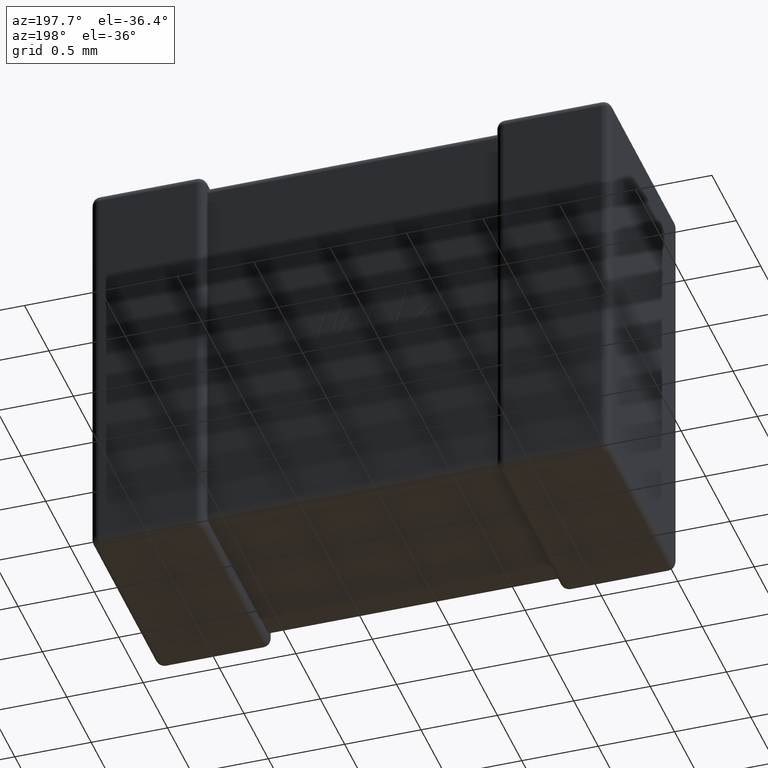
[diagram: clean part render]
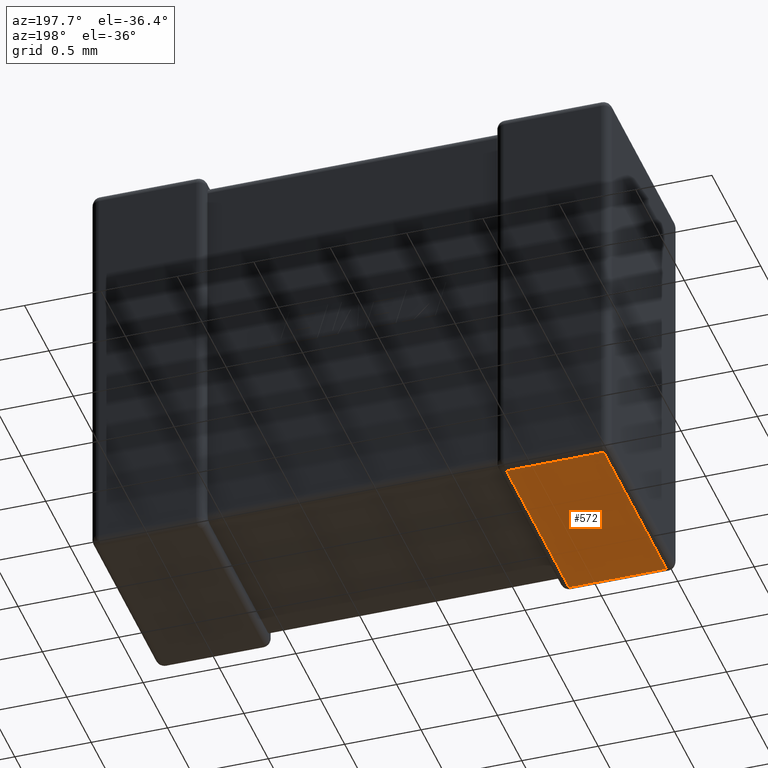
[diagram: same view with one face highlighted and labeled with its STEP entity id]
A machine part, auxiliary view. The second image highlights one B-rep face of the part: STEP entity #572.
In plain terms, the highlighted planar face has unit normal (0, 0, 1).
Its self-contained STEP definition (entity closure, byte-faithful):
#178 = DIRECTION ( 'NONE',  ( 1.000000000000000000, -0.0000000000000000000, -0.0000000000000000000 ) ) ;
#208 = EDGE_LOOP ( 'NONE', ( #746, #1986, #1349, #1389 ) ) ;
#329 = VECTOR ( 'NONE', #411, 1000.000000000000000 ) ;
#411 = DIRECTION ( 'NONE',  ( 3.861118847882867800E-015, -1.000000000000000000, 0.0000000000000000000 ) ) ;
#572 = ADVANCED_FACE ( 'NONE', ( #1932 ), #3317, .F. ) ;
#718 = VERTEX_POINT ( 'NONE', #3019 ) ;
#746 = ORIENTED_EDGE ( 'NONE', *, *, #750, .T. ) ;
#750 = EDGE_CURVE ( 'NONE', #718, #4381, #1414, .T. ) ;
#1046 = VERTEX_POINT ( 'NONE', #1100 ) ;
#1100 = CARTESIAN_POINT ( 'NONE',  ( 0.6938400000000047900, 0.05616000000000000200, -2.700000000000000200 ) ) ;
#1204 = CARTESIAN_POINT ( 'NONE',  ( 3.400000000000000400, 0.05616000000000000200, -2.700000000000000200 ) ) ;
#1257 = CARTESIAN_POINT ( 'NONE',  ( 3.400000000000000400, 1.343839999999999900, -2.700000000000000200 ) ) ;
#1349 = ORIENTED_EDGE ( 'NONE', *, *, #2384, .T. ) ;
#1359 = VECTOR ( 'NONE', #3399, 1000.000000000000000 ) ;
#1364 = LINE ( 'NONE', #3669, #329 ) ;
#1389 = ORIENTED_EDGE ( 'NONE', *, *, #3854, .T. ) ;
#1414 = LINE ( 'NONE', #1257, #4219 ) ;
#1932 = FACE_OUTER_BOUND ( 'NONE', #208, .T. ) ;
#1948 = DIRECTION ( 'NONE',  ( 0.0000000000000000000, 1.000000000000000000, -0.0000000000000000000 ) ) ;
#1986 = ORIENTED_EDGE ( 'NONE', *, *, #2948, .T. ) ;
#2057 = LINE ( 'NONE', #2296, #2663 ) ;
#2077 = CARTESIAN_POINT ( 'NONE',  ( 0.05615999999999997400, 0.05616000000000000200, -2.700000000000000200 ) ) ;
#2250 = DIRECTION ( 'NONE',  ( 1.000000000000000000, 0.0000000000000000000, -0.0000000000000000000 ) ) ;
#2296 = CARTESIAN_POINT ( 'NONE',  ( 0.05615999999999997400, 1.399999999999999900, -2.700000000000000200 ) ) ;
#2384 = EDGE_CURVE ( 'NONE', #1046, #2715, #4189, .T. ) ;
#2663 = VECTOR ( 'NONE', #1948, 1000.000000000000000 ) ;
#2715 = VERTEX_POINT ( 'NONE', #2077 ) ;
#2948 = EDGE_CURVE ( 'NONE', #4381, #1046, #1364, .T. ) ;
#3019 = CARTESIAN_POINT ( 'NONE',  ( 0.05615999999999997400, 1.343839999999999900, -2.700000000000000200 ) ) ;
#3317 = PLANE ( 'NONE',  #4424 ) ;
#3399 = DIRECTION ( 'NONE',  ( -1.000000000000000000, -0.0000000000000000000, 0.0000000000000000000 ) ) ;
#3669 = CARTESIAN_POINT ( 'NONE',  ( 0.6938400000000050100, -1.044880538138668400E-014, -2.700000000000000200 ) ) ;
#3854 = EDGE_CURVE ( 'NONE', #2715, #718, #2057, .T. ) ;
#4050 = CARTESIAN_POINT ( 'NONE',  ( 3.400000000000000400, 0.0000000000000000000, -2.700000000000000200 ) ) ;
#4189 = LINE ( 'NONE', #1204, #1359 ) ;
#4219 = VECTOR ( 'NONE', #178, 1000.000000000000000 ) ;
#4381 = VERTEX_POINT ( 'NONE', #4558 ) ;
#4423 = DIRECTION ( 'NONE',  ( 0.0000000000000000000, 0.0000000000000000000, 1.000000000000000000 ) ) ;
#4424 = AXIS2_PLACEMENT_3D ( 'NONE', #4050, #4423, #2250 ) ;
#4558 = CARTESIAN_POINT ( 'NONE',  ( 0.6938399999999997900, 1.343839999999999900, -2.700000000000000200 ) ) ;